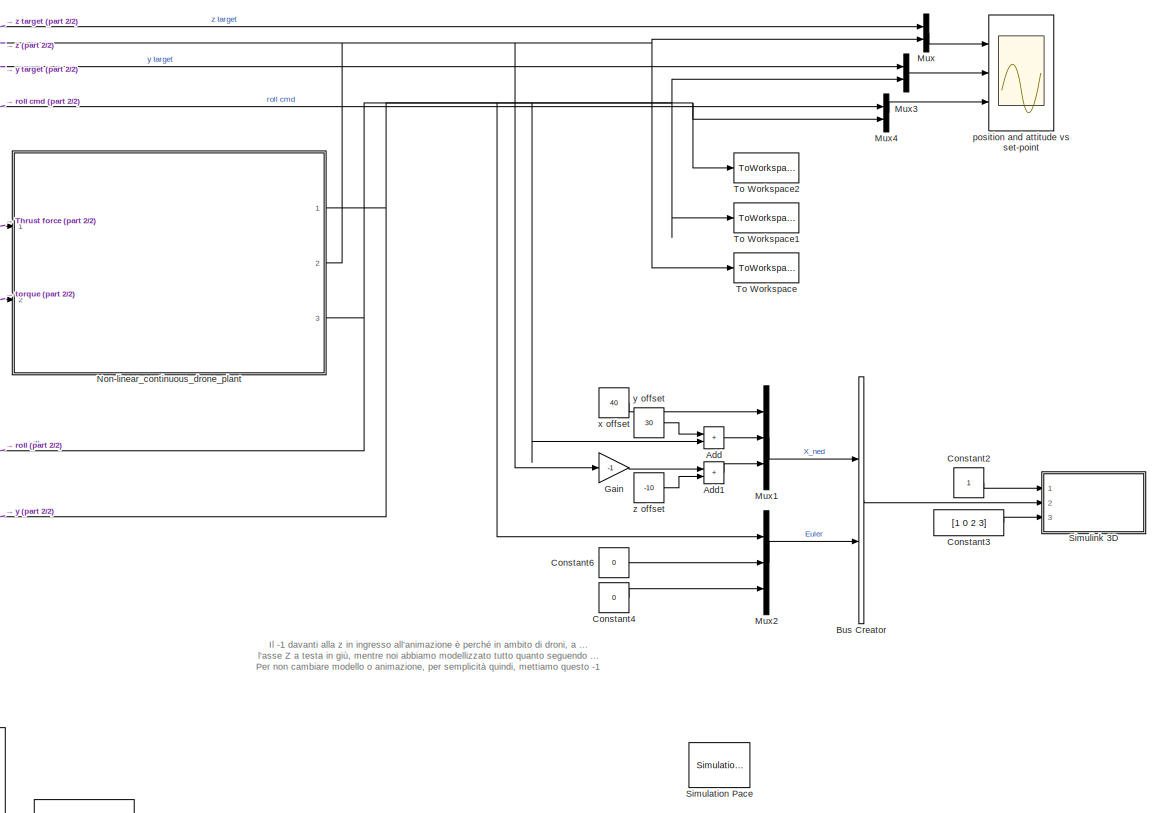
[diagram: root canvas - part 1/2, right side, full height]
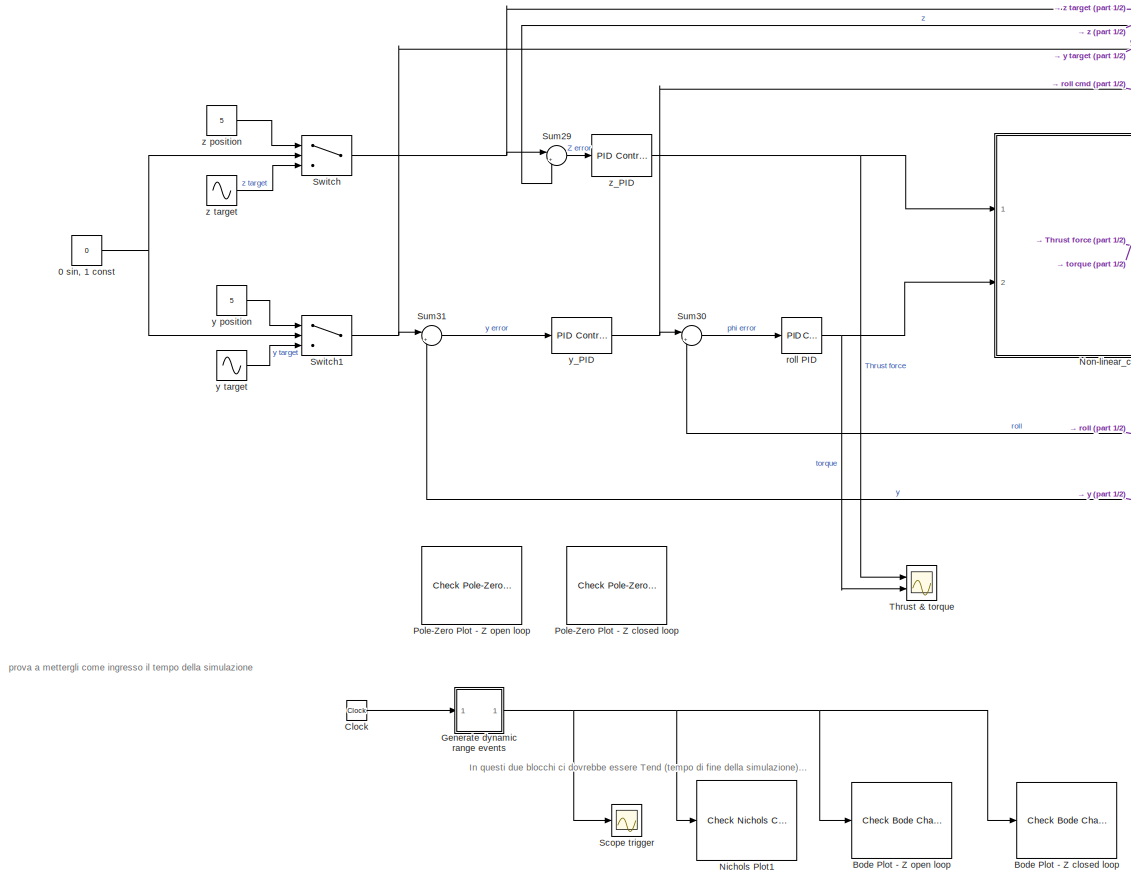
[diagram: root canvas - part 2/2, left side, full height]
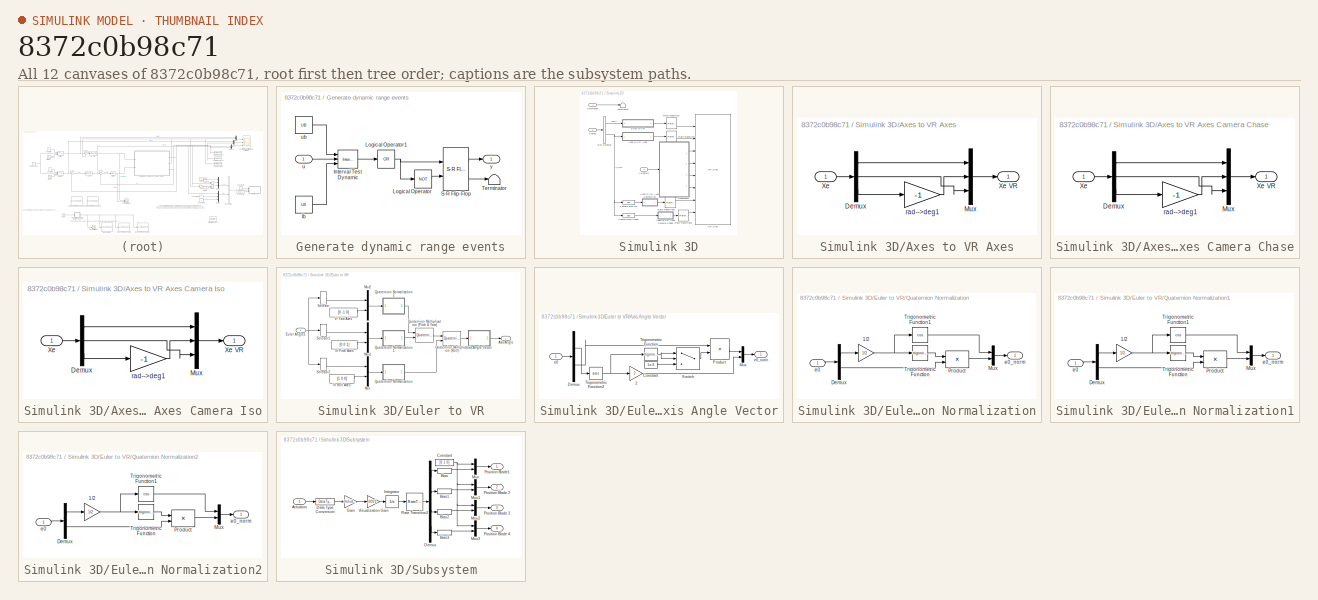
[diagram: thumbnail index - all 12 canvases of the model, root first then tree order]
MODEL slx_8372c0b98c71
KIND model
CONFIG AbsTol = auto
CONFIG EnableMultiTasking = off
CONFIG FixedStep = 0.01
CONFIG MaxStep = auto
CONFIG MinStep = auto
CONFIG RelTol = 1e-3
CONFIG SampleTimeConstraint = Unconstrained
CONFIG Solver = FixedStepAuto
CONFIG SolverName = FixedStepAuto
CONFIG StartTime = 0.0
CONFIG StopTime = 100
BLOCK [Constant] 0 sin, 1 const
  Value = 0
BLOCK [Sum] Add
  IconShape = rectangular
  Ports = [2, 1]
BLOCK [Sum] Add1
  IconShape = rectangular
  Ports = [2, 1]
BLOCK [Reference] Bode Plot - Z closed loop  REF=slctrlblks/Model Verification/Check Bode 
Characteristics
  InstantiateOnLoad = on
  Ports = [1]
  SourceBlock = slctrlblks/Model Verification/Check Bode \nCharacteristics
  SourceProductBaseCode = SD
  SourceType = Checks_Bode
BLOCK [Reference] Bode Plot - Z open loop  REF=slctrlblks/Model Verification/Check Bode 
Characteristics
  InstantiateOnLoad = on
  Ports = [1]
  SourceBlock = slctrlblks/Model Verification/Check Bode \nCharacteristics
  SourceProductBaseCode = SD
  SourceType = Checks_Bode
BLOCK [BusCreator] Bus Creator
  DisplayOption = bar
  InheritFromInputs = on
  Inputs = 2
  Ports = [2, 1]
BLOCK [Clock] Clock
BLOCK [Constant] Constant2
BLOCK [Constant] Constant3
  Value = [1 0 2 3]
BLOCK [Constant] Constant4
  Value = 0
BLOCK [Constant] Constant6
  Value = 0
BLOCK [Gain] Gain
  Gain = -1
BLOCK [SubSystem] Generate dynamic range events
  NameLocation = top
  Ports = [1, 1]
  RequestExecContextInheritance = off
BLOCK [Reference] Generate dynamic range events/Interval Test Dynamic  REF=simulink/Logic and Bit
Operations/Interval Test
Dynamic
  Ports = [3, 1]
  SourceBlock = simulink/Logic and Bit\nOperations/Interval Test\nDynamic
  SourceProductBaseCode = SL
  SourceType = Interval Test Dynamic
BLOCK [Logic] Generate dynamic range events/Logical Operator
  AllPortsSameDT = off
  Operator = NOT
  OutDataTypeStr = boolean
  Ports = [1, 1]
BLOCK [Logic] Generate dynamic range events/Logical Operator1
  AllPortsSameDT = off
  Inputs = 1
  Operator = OR
  OutDataTypeStr = boolean
  Ports = [1, 1]
BLOCK [Reference] Generate dynamic range events/S-R Flip-Flop  REF=simulink_extras/Flip Flops/S-R
Flip-Flop
  Ports = [2, 2]
  SourceBlock = simulink_extras/Flip Flops/S-R\nFlip-Flop
  SourceProductBaseCode = SL
  SourceType = SRFlipFlop
BLOCK [Terminator] Generate dynamic range events/Terminator
BLOCK [Constant] Generate dynamic range events/lb
  Value = LB
BLOCK [Inport] Generate dynamic range events/u
BLOCK [Constant] Generate dynamic range events/ub
  Value = UB
BLOCK [Outport] Generate dynamic range events/y
  VectorParamsAs1DForOutWhenUnconnected = off
BLOCK [Mux] Mux
  DisplayOption = bar
  Inputs = 2
  Ports = [2, 1]
BLOCK [Mux] Mux1
  DisplayOption = bar
  Inputs = 3
  Ports = [3, 1]
BLOCK [Mux] Mux2
  DisplayOption = bar
  Inputs = 3
  Ports = [3, 1]
BLOCK [Mux] Mux3
  DisplayOption = bar
  Inputs = 2
  Ports = [2, 1]
BLOCK [Mux] Mux4
  DisplayOption = bar
  Inputs = 2
  Ports = [2, 1]
BLOCK [Reference] Nichols Plot1  REF=slctrlblks/Model Verification/Check Nichols
Characteristics
  Commented = on
  InstantiateOnLoad = on
  NameLocation = top
  Ports = [1]
  SourceBlock = slctrlblks/Model Verification/Check Nichols\nCharacteristics
  SourceProductBaseCode = SD
  SourceType = Checks_Nichols
BLOCK [SubSystem] Non-linear_continuous_drone_plant
  Ports = [2, 3]
  ReferencedSubsystem = Non_linear_continuous_drone_plant
  RequestExecContextInheritance = off
BLOCK [Reference] Pole-Zero Plot - Z closed loop  REF=slctrlblks/Model Verification/Check Pole-Zero
Characteristics
  InstantiateOnLoad = on
  Ports = []
  SourceBlock = slctrlblks/Model Verification/Check Pole-Zero\nCharacteristics
  SourceProductBaseCode = SD
  SourceType = Checks_PZMap
BLOCK [Reference] Pole-Zero Plot - Z open loop  REF=slctrlblks/Model Verification/Check Pole-Zero
Characteristics
  InstantiateOnLoad = on
  Ports = []
  SourceBlock = slctrlblks/Model Verification/Check Pole-Zero\nCharacteristics
  SourceProductBaseCode = SD
  SourceType = Checks_PZMap
BLOCK [Scope] Scope trigger
  Floating = off
  NumInputPorts = 1
  Ports = [1]
  ScopeSpecificationString = Simulink.scopes.TimeScopeBlockCfg('CurrentConfiguration', extmgr.ConfigurationSet(extmgr.Configuration('Core','General UI',true),extmgr.Configuration('Core','Source UI',true),extmgr.Configuration('Sources','WiredSimulink',true,'DataLoggingVariableName','ScopeData2'),extmgr.Configuration('Visuals','Time Domain',true,'SerializedDisplays',{struct('MinYLimReal','-0.125','MaxYLimReal','1.125','YLabelRe...<+1377ch>
BLOCK [Reference] Simulation Pace  REF=aerolibanimutils/Simulation Pace
  AttributesFormatString = %<SimulationPace> sec/sec
  Commented = on
  Ports = []
  SourceBlock = aerolibanimutils/Simulation Pace
  SourceProductBaseCode = AE
  SourceType = Simulation Pace
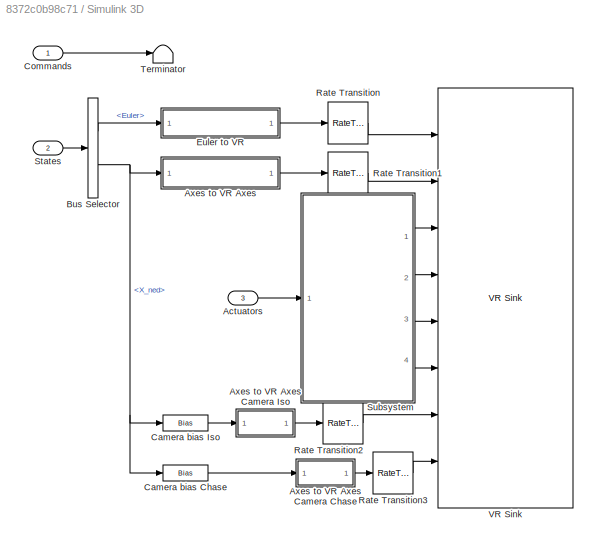
BLOCK [SubSystem] Simulink 3D
  Ports = [3]
  RequestExecContextInheritance = off
  VariantControl = VSS_VISUALIZATION_SL3D
BLOCK [Inport] Simulink 3D/Actuators
  Port = 3
BLOCK [SubSystem] Simulink 3D/Axes to VR Axes
  Ports = [1, 1]
  RequestExecContextInheritance = off
BLOCK [SubSystem] Simulink 3D/Axes to VR Axes Camera Chase
  Ports = [1, 1]
  RequestExecContextInheritance = off
BLOCK [Demux] Simulink 3D/Axes to VR Axes Camera Chase/Demux
  DisplayOption = none
  Outputs = 3
  Ports = [1, 3]
BLOCK [Mux] Simulink 3D/Axes to VR Axes Camera Chase/Mux
  DisplayOption = bar
  Inputs = 3
  Ports = [3, 1]
BLOCK [Inport] Simulink 3D/Axes to VR Axes Camera Chase/Xe
BLOCK [Outport] Simulink 3D/Axes to VR Axes Camera Chase/Xe VR
  VectorParamsAs1DForOutWhenUnconnected = off
BLOCK [Gain] Simulink 3D/Axes to VR Axes Camera Chase/rad-->deg1
  Gain = -1
  NameLocation = top
  OutDataTypeStr = Inherit: Same as input
  ParamDataTypeStr = Inherit: Same as input
  SaturateOnIntegerOverflow = on
BLOCK [SubSystem] Simulink 3D/Axes to VR Axes Camera Iso
  Ports = [1, 1]
  RequestExecContextInheritance = off
BLOCK [Demux] Simulink 3D/Axes to VR Axes Camera Iso/Demux
  DisplayOption = none
  Outputs = 3
  Ports = [1, 3]
BLOCK [Mux] Simulink 3D/Axes to VR Axes Camera Iso/Mux
  DisplayOption = bar
  Inputs = 3
  Ports = [3, 1]
BLOCK [Inport] Simulink 3D/Axes to VR Axes Camera Iso/Xe
BLOCK [Outport] Simulink 3D/Axes to VR Axes Camera Iso/Xe VR
  VectorParamsAs1DForOutWhenUnconnected = off
BLOCK [Gain] Simulink 3D/Axes to VR Axes Camera Iso/rad-->deg1
  Gain = -1
  NameLocation = top
  OutDataTypeStr = Inherit: Same as input
  ParamDataTypeStr = Inherit: Same as input
  SaturateOnIntegerOverflow = on
BLOCK [Demux] Simulink 3D/Axes to VR Axes/Demux
  DisplayOption = none
  Outputs = 3
  Ports = [1, 3]
BLOCK [Mux] Simulink 3D/Axes to VR Axes/Mux
  DisplayOption = bar
  Inputs = 3
  Ports = [3, 1]
BLOCK [Inport] Simulink 3D/Axes to VR Axes/Xe
BLOCK [Outport] Simulink 3D/Axes to VR Axes/Xe VR
  VectorParamsAs1DForOutWhenUnconnected = off
BLOCK [Gain] Simulink 3D/Axes to VR Axes/rad-->deg1
  Gain = -1
  NameLocation = top
  OutDataTypeStr = Inherit: Same as input
  ParamDataTypeStr = Inherit: Same as input
  SaturateOnIntegerOverflow = on
BLOCK [BusSelector] Simulink 3D/Bus Selector
  OutputSignals = Euler,X_ned
  Ports = [1, 2]
BLOCK [Bias] Simulink 3D/Camera bias Chase
  Bias = [-4 0 -.9558]'
  SaturateOnIntegerOverflow = off
BLOCK [Bias] Simulink 3D/Camera bias Iso
  Bias = [0.9009 .99 -.6247]'
  SaturateOnIntegerOverflow = off
BLOCK [Inport] Simulink 3D/Commands
BLOCK [SubSystem] Simulink 3D/Euler to VR
  Ports = [1, 1]
  RequestExecContextInheritance = off
BLOCK [Outport] Simulink 3D/Euler to VR/Axis Angle
  VectorParamsAs1DForOutWhenUnconnected = off
BLOCK [SubSystem] Simulink 3D/Euler to VR/Axis Angle Vector
  Ports = [1, 1]
  RequestExecContextInheritance = off
BLOCK [Gain] Simulink 3D/Euler to VR/Axis Angle Vector/2
  Gain = 2
  OutDataTypeStr = Inherit: Same as input
  ParamDataTypeStr = Inherit: Same as input
  SaturateOnIntegerOverflow = on
BLOCK [Constant] Simulink 3D/Euler to VR/Axis Angle Vector/Constant
  Value = 1e-6
BLOCK [Demux] Simulink 3D/Euler to VR/Axis Angle Vector/Demux
  DisplayOption = none
  Outputs = [1 3 ]
  Ports = [1, 2]
BLOCK [Mux] Simulink 3D/Euler to VR/Axis Angle Vector/Mux
  DisplayOption = bar
  Inputs = 2
  Ports = [2, 1]
BLOCK [Product] Simulink 3D/Euler to VR/Axis Angle Vector/Product
  InputSameDT = on
  Inputs = */
  OutDataTypeStr = Inherit: Same as first input
  Ports = [2, 1]
  SaturateOnIntegerOverflow = on
BLOCK [Switch] Simulink 3D/Euler to VR/Axis Angle Vector/Switch
  Criteria = u2 ~= 0
  InputSameDT = off
  SaturateOnIntegerOverflow = off
BLOCK [Trigonometry] Simulink 3D/Euler to VR/Axis Angle Vector/Trigonometric Function
  Ports = [1, 1]
BLOCK [Trigonometry] Simulink 3D/Euler to VR/Axis Angle Vector/Trigonometric Function2
  Operator = acos
  Ports = [1, 1]
BLOCK [Inport] Simulink 3D/Euler to VR/Axis Angle Vector/e0
BLOCK [Outport] Simulink 3D/Euler to VR/Axis Angle Vector/e0_norm
  VectorParamsAs1DForOutWhenUnconnected = off
BLOCK [Inport] Simulink 3D/Euler to VR/Euler Angles
BLOCK [Mux] Simulink 3D/Euler to VR/Mux
  DisplayOption = bar
  Inputs = 2
  Ports = [2, 1]
BLOCK [Mux] Simulink 3D/Euler to VR/Mux1
  DisplayOption = bar
  Inputs = 2
  Ports = [2, 1]
BLOCK [Mux] Simulink 3D/Euler to VR/Mux2
  DisplayOption = bar
  Inputs = 2
  Ports = [2, 1]
BLOCK [Reference] Simulink 3D/Euler to VR/Quaternion Multiplication (Pitch & Yaw)  REF=aerolibutil/Quaternion
Multiplication
  Ports = [2, 1]
  SourceBlock = aerolibutil/Quaternion\nMultiplication
  SourceProductBaseCode = AE
  SourceType = Quaternion Multiplication
BLOCK [Reference] Simulink 3D/Euler to VR/Quaternion Multiplication (Roll)  REF=aerolibutil/Quaternion
Multiplication
  Ports = [2, 1]
  SourceBlock = aerolibutil/Quaternion\nMultiplication
  SourceProductBaseCode = AE
  SourceType = Quaternion Multiplication
BLOCK [SubSystem] Simulink 3D/Euler to VR/Quaternion Normalization
  Ports = [1, 1]
  RequestExecContextInheritance = off
BLOCK [Gain] Simulink 3D/Euler to VR/Quaternion Normalization/1//2
  Gain = 1/2
  OutDataTypeStr = Inherit: Same as input
  ParamDataTypeStr = Inherit: Same as input
  SaturateOnIntegerOverflow = on
BLOCK [Demux] Simulink 3D/Euler to VR/Quaternion Normalization/Demux
  DisplayOption = none
  Outputs = [1 3]
  Ports = [1, 2]
BLOCK [Mux] Simulink 3D/Euler to VR/Quaternion Normalization/Mux
  DisplayOption = bar
  Inputs = 2
  Ports = [2, 1]
BLOCK [Product] Simulink 3D/Euler to VR/Quaternion Normalization/Product
  InputSameDT = on
  OutDataTypeStr = Inherit: Same as first input
  Ports = [2, 1]
  SaturateOnIntegerOverflow = on
BLOCK [Trigonometry] Simulink 3D/Euler to VR/Quaternion Normalization/Trigonometric Function
  Ports = [1, 1]
BLOCK [Trigonometry] Simulink 3D/Euler to VR/Quaternion Normalization/Trigonometric Function1
  Operator = cos
  Ports = [1, 1]
BLOCK [Inport] Simulink 3D/Euler to VR/Quaternion Normalization/e0
BLOCK [Outport] Simulink 3D/Euler to VR/Quaternion Normalization/e0_norm
  VectorParamsAs1DForOutWhenUnconnected = off
BLOCK [SubSystem] Simulink 3D/Euler to VR/Quaternion Normalization1
  Ports = [1, 1]
  RequestExecContextInheritance = off
BLOCK [Gain] Simulink 3D/Euler to VR/Quaternion Normalization1/1//2
  Gain = 1/2
  OutDataTypeStr = Inherit: Same as input
  ParamDataTypeStr = Inherit: Same as input
  SaturateOnIntegerOverflow = on
BLOCK [Demux] Simulink 3D/Euler to VR/Quaternion Normalization1/Demux
  DisplayOption = none
  Outputs = [1 3]
  Ports = [1, 2]
BLOCK [Mux] Simulink 3D/Euler to VR/Quaternion Normalization1/Mux
  DisplayOption = bar
  Inputs = 2
  Ports = [2, 1]
BLOCK [Product] Simulink 3D/Euler to VR/Quaternion Normalization1/Product
  InputSameDT = on
  OutDataTypeStr = Inherit: Same as first input
  Ports = [2, 1]
  SaturateOnIntegerOverflow = on
BLOCK [Trigonometry] Simulink 3D/Euler to VR/Quaternion Normalization1/Trigonometric Function
  Ports = [1, 1]
BLOCK [Trigonometry] Simulink 3D/Euler to VR/Quaternion Normalization1/Trigonometric Function1
  Operator = cos
  Ports = [1, 1]
BLOCK [Inport] Simulink 3D/Euler to VR/Quaternion Normalization1/e0
BLOCK [Outport] Simulink 3D/Euler to VR/Quaternion Normalization1/e0_norm
  VectorParamsAs1DForOutWhenUnconnected = off
BLOCK [SubSystem] Simulink 3D/Euler to VR/Quaternion Normalization2
  Ports = [1, 1]
  RequestExecContextInheritance = off
BLOCK [Gain] Simulink 3D/Euler to VR/Quaternion Normalization2/1//2
  Gain = 1/2
  OutDataTypeStr = Inherit: Same as input
  ParamDataTypeStr = Inherit: Same as input
  SaturateOnIntegerOverflow = on
BLOCK [Demux] Simulink 3D/Euler to VR/Quaternion Normalization2/Demux
  DisplayOption = none
  Outputs = [1 3]
  Ports = [1, 2]
BLOCK [Mux] Simulink 3D/Euler to VR/Quaternion Normalization2/Mux
  DisplayOption = bar
  Inputs = 2
  Ports = [2, 1]
BLOCK [Product] Simulink 3D/Euler to VR/Quaternion Normalization2/Product
  InputSameDT = on
  OutDataTypeStr = Inherit: Same as first input
  Ports = [2, 1]
  SaturateOnIntegerOverflow = on
BLOCK [Trigonometry] Simulink 3D/Euler to VR/Quaternion Normalization2/Trigonometric Function
  Ports = [1, 1]
BLOCK [Trigonometry] Simulink 3D/Euler to VR/Quaternion Normalization2/Trigonometric Function1
  Operator = cos
  Ports = [1, 1]
BLOCK [Inport] Simulink 3D/Euler to VR/Quaternion Normalization2/e0
BLOCK [Outport] Simulink 3D/Euler to VR/Quaternion Normalization2/e0_norm
  VectorParamsAs1DForOutWhenUnconnected = off
BLOCK [Selector] Simulink 3D/Euler to VR/Selector
  IndexOptions = Index vector (dialog)
  Indices = [3]
  InputPortWidth = 3
  OutputSizes = 1
  Ports = [1, 1]
BLOCK [Selector] Simulink 3D/Euler to VR/Selector1
  IndexOptions = Index vector (dialog)
  Indices = [2]
  InputPortWidth = 3
  OutputSizes = 1
  Ports = [1, 1]
BLOCK [Selector] Simulink 3D/Euler to VR/Selector2
  IndexOptions = Index vector (dialog)
  Indices = [1]
  InputPortWidth = 3
  OutputSizes = 1
  Ports = [1, 1]
BLOCK [Constant] Simulink 3D/Euler to VR/Vr Pitch Axes
  NameLocation = top
  Value = [0 0 1]
BLOCK [Constant] Simulink 3D/Euler to VR/Vr Roll Axes
  NameLocation = top
  Value = [1 0 0]
BLOCK [Constant] Simulink 3D/Euler to VR/Vr Yaw Axes
  Value = [0 -1 0]
BLOCK [RateTransition] Simulink 3D/Rate Transition
BLOCK [RateTransition] Simulink 3D/Rate Transition1
BLOCK [RateTransition] Simulink 3D/Rate Transition2
BLOCK [RateTransition] Simulink 3D/Rate Transition3
BLOCK [Inport] Simulink 3D/States
  Port = 2
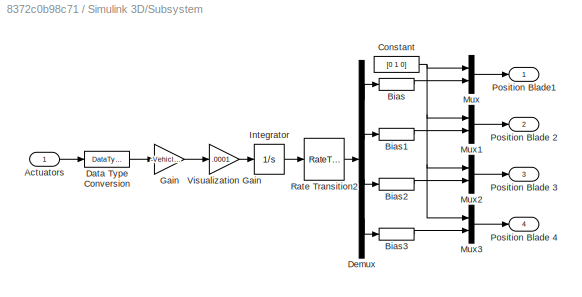
BLOCK [SubSystem] Simulink 3D/Subsystem
  Ports = [1, 4]
  RequestExecContextInheritance = off
BLOCK [Inport] Simulink 3D/Subsystem/Actuators
BLOCK [Bias] Simulink 3D/Subsystem/Bias
  Bias = .1
  SaturateOnIntegerOverflow = off
BLOCK [Bias] Simulink 3D/Subsystem/Bias1
  Bias = -.3
  SaturateOnIntegerOverflow = off
BLOCK [Bias] Simulink 3D/Subsystem/Bias2
  Bias = .5
  SaturateOnIntegerOverflow = off
BLOCK [Bias] Simulink 3D/Subsystem/Bias3
  Bias = .7
  SaturateOnIntegerOverflow = off
BLOCK [Constant] Simulink 3D/Subsystem/Constant
  Value = [0 1 0]
BLOCK [DataTypeConversion] Simulink 3D/Subsystem/Data Type Conversion
  OutDataTypeStr = double
  RndMeth = Floor
  SaturateOnIntegerOverflow = off
BLOCK [Demux] Simulink 3D/Subsystem/Demux
  Ports = [1, 4]
BLOCK [Gain] Simulink 3D/Subsystem/Gain
  Gain = -Vehicle.Motor.commandToW2Gain
BLOCK [Integrator] Simulink 3D/Subsystem/Integrator
  InitialCondition = [.1  .2 -.3 -.4]
  Ports = [1, 1]
  WrapState = on
  WrappedStateLowerValue = -2*pi
  WrappedStateUpperValue = 2*pi
BLOCK [Mux] Simulink 3D/Subsystem/Mux
  DisplayOption = bar
  Inputs = 2
  Ports = [2, 1]
BLOCK [Mux] Simulink 3D/Subsystem/Mux1
  DisplayOption = bar
  Inputs = 2
  Ports = [2, 1]
BLOCK [Mux] Simulink 3D/Subsystem/Mux2
  DisplayOption = bar
  Inputs = 2
  Ports = [2, 1]
BLOCK [Mux] Simulink 3D/Subsystem/Mux3
  DisplayOption = bar
  Inputs = 2
  Ports = [2, 1]
BLOCK [Outport] Simulink 3D/Subsystem/Position Blade 2
  Port = 2
  VectorParamsAs1DForOutWhenUnconnected = off
BLOCK [Outport] Simulink 3D/Subsystem/Position Blade 3
  Port = 3
  VectorParamsAs1DForOutWhenUnconnected = off
BLOCK [Outport] Simulink 3D/Subsystem/Position Blade 4
  Port = 4
  VectorParamsAs1DForOutWhenUnconnected = off
BLOCK [Outport] Simulink 3D/Subsystem/Position Blade1
  VectorParamsAs1DForOutWhenUnconnected = off
BLOCK [RateTransition] Simulink 3D/Subsystem/Rate Transition2
BLOCK [Gain] Simulink 3D/Subsystem/Visualization Gain
  Gain = .0001
BLOCK [Terminator] Simulink 3D/Terminator
BLOCK [Reference] Simulink 3D/VR Sink  REF=vrlib/VR Sink
  InstantiateOnLoad = on
  Ports = [8]
  SourceBlock = vrlib/VR Sink
  SourceProductBaseCode = SL
  SourceType = Virtual Reality Sink
BLOCK [Sum] Sum29
  Inputs = |+-
  Ports = [2, 1]
BLOCK [Sum] Sum30
  Inputs = |+-
  Ports = [2, 1]
BLOCK [Sum] Sum31
  Inputs = |+-
  Ports = [2, 1]
BLOCK [Switch] Switch
  Criteria = u2 > Threshold
  InputSameDT = off
  SaturateOnIntegerOverflow = off
  Threshold = 0.5
BLOCK [Switch] Switch1
  Criteria = u2 > Threshold
  InputSameDT = off
  SaturateOnIntegerOverflow = off
  Threshold = 0.5
BLOCK [Scope] Thrust & torque
  Floating = off
  NumInputPorts = 2
  Ports = [2]
  ScopeSpecificationString = Simulink.scopes.TimeScopeBlockCfg('CurrentConfiguration', extmgr.ConfigurationSet(extmgr.Configuration('Core','General UI',true),extmgr.Configuration('Core','Source UI',true),extmgr.Configuration('Sources','WiredSimulink',true,'DataLoggingVariableName','ScopeData13'),extmgr.Configuration('Visuals','Time Domain',true,'SerializedDisplays',{struct('MinYLimReal','-3.83413','MaxYLimReal','33.75935','YL...<+1490ch>
BLOCK [ToWorkspace] To Workspace
  FixptAsFi = on
  MaxDataPoints = inf
  Ports = [1]
  SampleTime = -1
  VariableName = zout
BLOCK [ToWorkspace] To Workspace1
  FixptAsFi = on
  MaxDataPoints = inf
  Ports = [1]
  SampleTime = -1
  VariableName = yout
BLOCK [ToWorkspace] To Workspace2
  FixptAsFi = on
  MaxDataPoints = inf
  Ports = [1]
  SampleTime = -1
  VariableName = rollout
BLOCK [Scope] position and attitude vs set-point
  Floating = off
  NumInputPorts = 3
  Ports = [3]
  ScopeSpecificationString = Simulink.scopes.TimeScopeBlockCfg('CurrentConfiguration', extmgr.ConfigurationSet(extmgr.Configuration('Core','General UI',true),extmgr.Configuration('Core','Source UI',true),extmgr.Configuration('Sources','WiredSimulink',true,'DataLoggingVariableName','ScopeData1'),extmgr.Configuration('Visuals','Time Domain',true,'SerializedDisplays',{struct('MinYLimReal','-3.98353','MaxYLimReal','3.96306','YLab...<+2880ch>
BLOCK [Reference] roll PID  REF=simulink/Continuous/PID Controller
  Ports = [1, 1]
  SourceBlock = simulink/Continuous/PID Controller
  SourceProductBaseCode = SL
  SourceType = PID 1dof
BLOCK [Constant] x offset
  Value = 40
BLOCK [Constant] y offset
  Value = 30
BLOCK [Constant] y position
  Value = 5
BLOCK [Sin] y target
  Amplitude = 2
  Frequency = 0.25
  Ports = [0, 1]
  SampleTime = 0
BLOCK [Reference] y_PID  REF=simulink/Continuous/PID Controller
  Ports = [1, 1]
  SourceBlock = simulink/Continuous/PID Controller
  SourceProductBaseCode = SL
  SourceType = PID 1dof
BLOCK [Constant] z offset
  Value = -10
BLOCK [Constant] z position
  Value = 5
BLOCK [Sin] z target
  Amplitude = 3
  Frequency = 0.5
  Ports = [0, 1]
  SampleTime = 0
BLOCK [Reference] z_PID  REF=simulink/Continuous/PID Controller
  Ports = [1, 1]
  SourceBlock = simulink/Continuous/PID Controller
  SourceProductBaseCode = SL
  SourceType = PID 1dof
ANNOTATION (root): Il -1 davanti alla z in ingresso all'animazione è perché in ambito di droni, a quanto pare, spesso si assume l'asse Z a testa in giù, mentre noi abbiamo modellizzato tutto quanto seguendo la convenzione sempre usata durante tutto il corso di laurea. Per non cambiare modello o animazione, per semplicità quindi, mettiamo questo -1
ANNOTATION (root): In questi due blocchi ci dovrebbe essere Tend (tempo di fine della simulazione); io ci ho messo direttamente 100
ANNOTATION (root): prova a mettergli come ingresso il tempo della simulazione
NET 0 sin, 1 const:1 -> Switch1:2, Switch:2
LINE Add1:1 -> Mux1:3
LINE Add:1 -> Mux1:2
LINE Bus Creator:1 -> Simulink 3D:2
LINE Clock:1 -> Generate dynamic range events:1
LINE Constant2:1 -> Simulink 3D:1
LINE Constant3:1 -> Simulink 3D:3
LINE Constant4:1 -> Mux2:3
LINE Constant6:1 -> Mux2:2
LINE Gain:1 -> Add1:1
LINE Generate dynamic range events/Interval Test Dynamic:1 -> Generate dynamic range events/Logical Operator1:1
NET Generate dynamic range events/Logical Operator1:1 -> Generate dynamic range events/Logical Operator:1, Generate dynamic range events/S-R Flip-Flop:1
LINE Generate dynamic range events/Logical Operator:1 -> Generate dynamic range events/S-R Flip-Flop:2
LINE Generate dynamic range events/S-R Flip-Flop:1 -> Generate dynamic range events/y:1
LINE Generate dynamic range events/S-R Flip-Flop:2 -> Generate dynamic range events/Terminator:1
LINE Generate dynamic range events/lb:1 -> Generate dynamic range events/Interval Test Dynamic:3
LINE Generate dynamic range events/u:1 -> Generate dynamic range events/Interval Test Dynamic:2
LINE Generate dynamic range events/ub:1 -> Generate dynamic range events/Interval Test Dynamic:1
NET Generate dynamic range events:1 -> Bode Plot - Z closed loop:1, Bode Plot - Z open loop:1, Nichols Plot1:1, Scope trigger:1
LINE Mux1:1 -> Bus Creator:1
LINE Mux2:1 -> Bus Creator:2
LINE Mux3:1 -> position and attitude vs set-point:2
LINE Mux4:1 -> position and attitude vs set-point:3
LINE Mux:1 -> position and attitude vs set-point:1
NET Non-linear_continuous_drone_plant:1 -> Add:2, Mux3:2, Sum31:2, To Workspace1:1
NET Non-linear_continuous_drone_plant:2 -> Gain:1, Mux:2, Sum29:2, To Workspace:1
NET Non-linear_continuous_drone_plant:3 -> Mux2:1, Mux4:2, Sum30:2, To Workspace2:1
LINE Simulink 3D/Actuators:1 -> Simulink 3D/Subsystem:1
LINE Simulink 3D/Axes to VR Axes Camera Chase/Demux:1 -> Simulink 3D/Axes to VR Axes Camera Chase/Mux:1
LINE Simulink 3D/Axes to VR Axes Camera Chase/Demux:2 -> Simulink 3D/Axes to VR Axes Camera Chase/Mux:3
LINE Simulink 3D/Axes to VR Axes Camera Chase/Demux:3 -> Simulink 3D/Axes to VR Axes Camera Chase/rad-->deg1:1
LINE Simulink 3D/Axes to VR Axes Camera Chase/Mux:1 -> Simulink 3D/Axes to VR Axes Camera Chase/Xe VR:1
LINE Simulink 3D/Axes to VR Axes Camera Chase/Xe:1 -> Simulink 3D/Axes to VR Axes Camera Chase/Demux:1
LINE Simulink 3D/Axes to VR Axes Camera Chase/rad-->deg1:1 -> Simulink 3D/Axes to VR Axes Camera Chase/Mux:2
LINE Simulink 3D/Axes to VR Axes Camera Chase:1 -> Simulink 3D/Rate Transition3:1
LINE Simulink 3D/Axes to VR Axes Camera Iso/Demux:1 -> Simulink 3D/Axes to VR Axes Camera Iso/Mux:1
LINE Simulink 3D/Axes to VR Axes Camera Iso/Demux:2 -> Simulink 3D/Axes to VR Axes Camera Iso/Mux:3
LINE Simulink 3D/Axes to VR Axes Camera Iso/Demux:3 -> Simulink 3D/Axes to VR Axes Camera Iso/rad-->deg1:1
LINE Simulink 3D/Axes to VR Axes Camera Iso/Mux:1 -> Simulink 3D/Axes to VR Axes Camera Iso/Xe VR:1
LINE Simulink 3D/Axes to VR Axes Camera Iso/Xe:1 -> Simulink 3D/Axes to VR Axes Camera Iso/Demux:1
LINE Simulink 3D/Axes to VR Axes Camera Iso/rad-->deg1:1 -> Simulink 3D/Axes to VR Axes Camera Iso/Mux:2
LINE Simulink 3D/Axes to VR Axes Camera Iso:1 -> Simulink 3D/Rate Transition2:1
LINE Simulink 3D/Axes to VR Axes/Demux:1 -> Simulink 3D/Axes to VR Axes/Mux:1
LINE Simulink 3D/Axes to VR Axes/Demux:2 -> Simulink 3D/Axes to VR Axes/Mux:3
LINE Simulink 3D/Axes to VR Axes/Demux:3 -> Simulink 3D/Axes to VR Axes/rad-->deg1:1
LINE Simulink 3D/Axes to VR Axes/Mux:1 -> Simulink 3D/Axes to VR Axes/Xe VR:1
LINE Simulink 3D/Axes to VR Axes/Xe:1 -> Simulink 3D/Axes to VR Axes/Demux:1
LINE Simulink 3D/Axes to VR Axes/rad-->deg1:1 -> Simulink 3D/Axes to VR Axes/Mux:2
LINE Simulink 3D/Axes to VR Axes:1 -> Simulink 3D/Rate Transition1:1
LINE Simulink 3D/Bus Selector:1 -> Simulink 3D/Euler to VR:1
NET Simulink 3D/Bus Selector:2 -> Simulink 3D/Axes to VR Axes:1, Simulink 3D/Camera bias Chase:1, Simulink 3D/Camera bias Iso:1
LINE Simulink 3D/Camera bias Chase:1 -> Simulink 3D/Axes to VR Axes Camera Chase:1
LINE Simulink 3D/Camera bias Iso:1 -> Simulink 3D/Axes to VR Axes Camera Iso:1
LINE Simulink 3D/Commands:1 -> Simulink 3D/Terminator:1
LINE Simulink 3D/Euler to VR/Axis Angle Vector/2:1 -> Simulink 3D/Euler to VR/Axis Angle Vector/Mux:2
LINE Simulink 3D/Euler to VR/Axis Angle Vector/Constant:1 -> Simulink 3D/Euler to VR/Axis Angle Vector/Switch:3
LINE Simulink 3D/Euler to VR/Axis Angle Vector/Demux:1 -> Simulink 3D/Euler to VR/Axis Angle Vector/Trigonometric Function2:1
LINE Simulink 3D/Euler to VR/Axis Angle Vector/Demux:2 -> Simulink 3D/Euler to VR/Axis Angle Vector/Product:1
LINE Simulink 3D/Euler to VR/Axis Angle Vector/Mux:1 -> Simulink 3D/Euler to VR/Axis Angle Vector/e0_norm:1
LINE Simulink 3D/Euler to VR/Axis Angle Vector/Product:1 -> Simulink 3D/Euler to VR/Axis Angle Vector/Mux:1
LINE Simulink 3D/Euler to VR/Axis Angle Vector/Switch:1 -> Simulink 3D/Euler to VR/Axis Angle Vector/Product:2
NET Simulink 3D/Euler to VR/Axis Angle Vector/Trigonometric Function2:1 -> Simulink 3D/Euler to VR/Axis Angle Vector/2:1, Simulink 3D/Euler to VR/Axis Angle Vector/Trigonometric Function:1
NET Simulink 3D/Euler to VR/Axis Angle Vector/Trigonometric Function:1 -> Simulink 3D/Euler to VR/Axis Angle Vector/Switch:1, Simulink 3D/Euler to VR/Axis Angle Vector/Switch:2
LINE Simulink 3D/Euler to VR/Axis Angle Vector/e0:1 -> Simulink 3D/Euler to VR/Axis Angle Vector/Demux:1
LINE Simulink 3D/Euler to VR/Axis Angle Vector:1 -> Simulink 3D/Euler to VR/Axis Angle:1
NET Simulink 3D/Euler to VR/Euler Angles:1 -> Simulink 3D/Euler to VR/Selector1:1, Simulink 3D/Euler to VR/Selector2:1, Simulink 3D/Euler to VR/Selector:1
LINE Simulink 3D/Euler to VR/Mux1:1 -> Simulink 3D/Euler to VR/Quaternion Normalization1:1
LINE Simulink 3D/Euler to VR/Mux2:1 -> Simulink 3D/Euler to VR/Quaternion Normalization2:1
LINE Simulink 3D/Euler to VR/Mux:1 -> Simulink 3D/Euler to VR/Quaternion Normalization:1
LINE Simulink 3D/Euler to VR/Quaternion Multiplication (Pitch & Yaw):1 -> Simulink 3D/Euler to VR/Quaternion Multiplication (Roll):1
LINE Simulink 3D/Euler to VR/Quaternion Multiplication (Roll):1 -> Simulink 3D/Euler to VR/Axis Angle Vector:1
NET Simulink 3D/Euler to VR/Quaternion Normalization/1//2:1 -> Simulink 3D/Euler to VR/Quaternion Normalization/Trigonometric Function1:1, Simulink 3D/Euler to VR/Quaternion Normalization/Trigonometric Function:1
LINE Simulink 3D/Euler to VR/Quaternion Normalization/Demux:1 -> Simulink 3D/Euler to VR/Quaternion Normalization/1//2:1
LINE Simulink 3D/Euler to VR/Quaternion Normalization/Demux:2 -> Simulink 3D/Euler to VR/Quaternion Normalization/Product:2
LINE Simulink 3D/Euler to VR/Quaternion Normalization/Mux:1 -> Simulink 3D/Euler to VR/Quaternion Normalization/e0_norm:1
LINE Simulink 3D/Euler to VR/Quaternion Normalization/Product:1 -> Simulink 3D/Euler to VR/Quaternion Normalization/Mux:2
LINE Simulink 3D/Euler to VR/Quaternion Normalization/Trigonometric Function1:1 -> Simulink 3D/Euler to VR/Quaternion Normalization/Mux:1
LINE Simulink 3D/Euler to VR/Quaternion Normalization/Trigonometric Function:1 -> Simulink 3D/Euler to VR/Quaternion Normalization/Product:1
LINE Simulink 3D/Euler to VR/Quaternion Normalization/e0:1 -> Simulink 3D/Euler to VR/Quaternion Normalization/Demux:1
NET Simulink 3D/Euler to VR/Quaternion Normalization1/1//2:1 -> Simulink 3D/Euler to VR/Quaternion Normalization1/Trigonometric Function1:1, Simulink 3D/Euler to VR/Quaternion Normalization1/Trigonometric Function:1
LINE Simulink 3D/Euler to VR/Quaternion Normalization1/Demux:1 -> Simulink 3D/Euler to VR/Quaternion Normalization1/1//2:1
LINE Simulink 3D/Euler to VR/Quaternion Normalization1/Demux:2 -> Simulink 3D/Euler to VR/Quaternion Normalization1/Product:2
LINE Simulink 3D/Euler to VR/Quaternion Normalization1/Mux:1 -> Simulink 3D/Euler to VR/Quaternion Normalization1/e0_norm:1
LINE Simulink 3D/Euler to VR/Quaternion Normalization1/Product:1 -> Simulink 3D/Euler to VR/Quaternion Normalization1/Mux:2
LINE Simulink 3D/Euler to VR/Quaternion Normalization1/Trigonometric Function1:1 -> Simulink 3D/Euler to VR/Quaternion Normalization1/Mux:1
LINE Simulink 3D/Euler to VR/Quaternion Normalization1/Trigonometric Function:1 -> Simulink 3D/Euler to VR/Quaternion Normalization1/Product:1
LINE Simulink 3D/Euler to VR/Quaternion Normalization1/e0:1 -> Simulink 3D/Euler to VR/Quaternion Normalization1/Demux:1
LINE Simulink 3D/Euler to VR/Quaternion Normalization1:1 -> Simulink 3D/Euler to VR/Quaternion Multiplication (Pitch & Yaw):2
NET Simulink 3D/Euler to VR/Quaternion Normalization2/1//2:1 -> Simulink 3D/Euler to VR/Quaternion Normalization2/Trigonometric Function1:1, Simulink 3D/Euler to VR/Quaternion Normalization2/Trigonometric Function:1
LINE Simulink 3D/Euler to VR/Quaternion Normalization2/Demux:1 -> Simulink 3D/Euler to VR/Quaternion Normalization2/1//2:1
LINE Simulink 3D/Euler to VR/Quaternion Normalization2/Demux:2 -> Simulink 3D/Euler to VR/Quaternion Normalization2/Product:2
LINE Simulink 3D/Euler to VR/Quaternion Normalization2/Mux:1 -> Simulink 3D/Euler to VR/Quaternion Normalization2/e0_norm:1
LINE Simulink 3D/Euler to VR/Quaternion Normalization2/Product:1 -> Simulink 3D/Euler to VR/Quaternion Normalization2/Mux:2
LINE Simulink 3D/Euler to VR/Quaternion Normalization2/Trigonometric Function1:1 -> Simulink 3D/Euler to VR/Quaternion Normalization2/Mux:1
LINE Simulink 3D/Euler to VR/Quaternion Normalization2/Trigonometric Function:1 -> Simulink 3D/Euler to VR/Quaternion Normalization2/Product:1
LINE Simulink 3D/Euler to VR/Quaternion Normalization2/e0:1 -> Simulink 3D/Euler to VR/Quaternion Normalization2/Demux:1
LINE Simulink 3D/Euler to VR/Quaternion Normalization2:1 -> Simulink 3D/Euler to VR/Quaternion Multiplication (Pitch & Yaw):1
LINE Simulink 3D/Euler to VR/Quaternion Normalization:1 -> Simulink 3D/Euler to VR/Quaternion Multiplication (Roll):2
LINE Simulink 3D/Euler to VR/Selector1:1 -> Simulink 3D/Euler to VR/Mux1:1
LINE Simulink 3D/Euler to VR/Selector2:1 -> Simulink 3D/Euler to VR/Mux:1
LINE Simulink 3D/Euler to VR/Selector:1 -> Simulink 3D/Euler to VR/Mux2:1
LINE Simulink 3D/Euler to VR/Vr Pitch Axes:1 -> Simulink 3D/Euler to VR/Mux1:2
LINE Simulink 3D/Euler to VR/Vr Roll Axes:1 -> Simulink 3D/Euler to VR/Mux:2
LINE Simulink 3D/Euler to VR/Vr Yaw Axes:1 -> Simulink 3D/Euler to VR/Mux2:2
LINE Simulink 3D/Euler to VR:1 -> Simulink 3D/Rate Transition:1
LINE Simulink 3D/Rate Transition1:1 -> Simulink 3D/VR Sink:2
LINE Simulink 3D/Rate Transition2:1 -> Simulink 3D/VR Sink:7
LINE Simulink 3D/Rate Transition3:1 -> Simulink 3D/VR Sink:8
LINE Simulink 3D/Rate Transition:1 -> Simulink 3D/VR Sink:1
LINE Simulink 3D/States:1 -> Simulink 3D/Bus Selector:1
LINE Simulink 3D/Subsystem/Actuators:1 -> Simulink 3D/Subsystem/Data Type Conversion:1
LINE Simulink 3D/Subsystem/Bias1:1 -> Simulink 3D/Subsystem/Mux1:2
LINE Simulink 3D/Subsystem/Bias2:1 -> Simulink 3D/Subsystem/Mux2:2
LINE Simulink 3D/Subsystem/Bias3:1 -> Simulink 3D/Subsystem/Mux3:2
LINE Simulink 3D/Subsystem/Bias:1 -> Simulink 3D/Subsystem/Mux:2
NET Simulink 3D/Subsystem/Constant:1 -> Simulink 3D/Subsystem/Mux1:1, Simulink 3D/Subsystem/Mux2:1, Simulink 3D/Subsystem/Mux3:1, Simulink 3D/Subsystem/Mux:1
LINE Simulink 3D/Subsystem/Data Type Conversion:1 -> Simulink 3D/Subsystem/Gain:1
LINE Simulink 3D/Subsystem/Demux:1 -> Simulink 3D/Subsystem/Bias:1
LINE Simulink 3D/Subsystem/Demux:2 -> Simulink 3D/Subsystem/Bias1:1
LINE Simulink 3D/Subsystem/Demux:3 -> Simulink 3D/Subsystem/Bias2:1
LINE Simulink 3D/Subsystem/Demux:4 -> Simulink 3D/Subsystem/Bias3:1
LINE Simulink 3D/Subsystem/Gain:1 -> Simulink 3D/Subsystem/Visualization Gain:1
LINE Simulink 3D/Subsystem/Integrator:1 -> Simulink 3D/Subsystem/Rate Transition2:1
LINE Simulink 3D/Subsystem/Mux1:1 -> Simulink 3D/Subsystem/Position Blade 2:1
LINE Simulink 3D/Subsystem/Mux2:1 -> Simulink 3D/Subsystem/Position Blade 3:1
LINE Simulink 3D/Subsystem/Mux3:1 -> Simulink 3D/Subsystem/Position Blade 4:1
LINE Simulink 3D/Subsystem/Mux:1 -> Simulink 3D/Subsystem/Position Blade1:1
LINE Simulink 3D/Subsystem/Rate Transition2:1 -> Simulink 3D/Subsystem/Demux:1
LINE Simulink 3D/Subsystem/Visualization Gain:1 -> Simulink 3D/Subsystem/Integrator:1
LINE Simulink 3D/Subsystem:1 -> Simulink 3D/VR Sink:3
LINE Simulink 3D/Subsystem:2 -> Simulink 3D/VR Sink:4
LINE Simulink 3D/Subsystem:3 -> Simulink 3D/VR Sink:5
LINE Simulink 3D/Subsystem:4 -> Simulink 3D/VR Sink:6
LINE Sum29:1 -> z_PID:1
LINE Sum30:1 -> roll PID:1
LINE Sum31:1 -> y_PID:1
NET Switch1:1 -> Mux3:1, Sum31:1
NET Switch:1 -> Mux:1, Sum29:1
NET roll PID:1 -> Non-linear_continuous_drone_plant:2, Thrust & torque:2
LINE x offset:1 -> Mux1:1
LINE y offset:1 -> Add:1
LINE y position:1 -> Switch1:1
LINE y target:1 -> Switch1:3
NET y_PID:1 -> Mux4:1, Sum30:1
LINE z offset:1 -> Add1:2
LINE z position:1 -> Switch:1
LINE z target:1 -> Switch:3
NET z_PID:1 -> Non-linear_continuous_drone_plant:1, Thrust & torque:1
note: NET lines group one-source signal fan-out (src -> all destinations, sorted); 1:1 wires keep LINE
